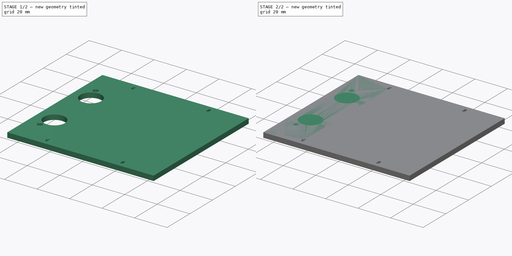
[diagram: build sequence overview — one tinted view per stage of 2, left to right]
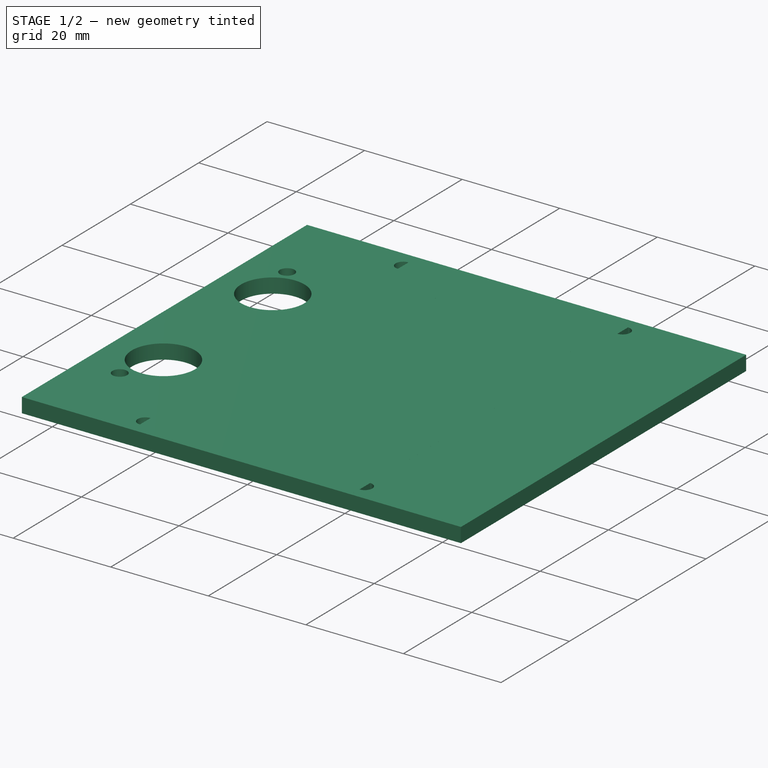
[diagram: stage 1 of 2 — iso view after this stage's code; geometry added in this stage tinted green]
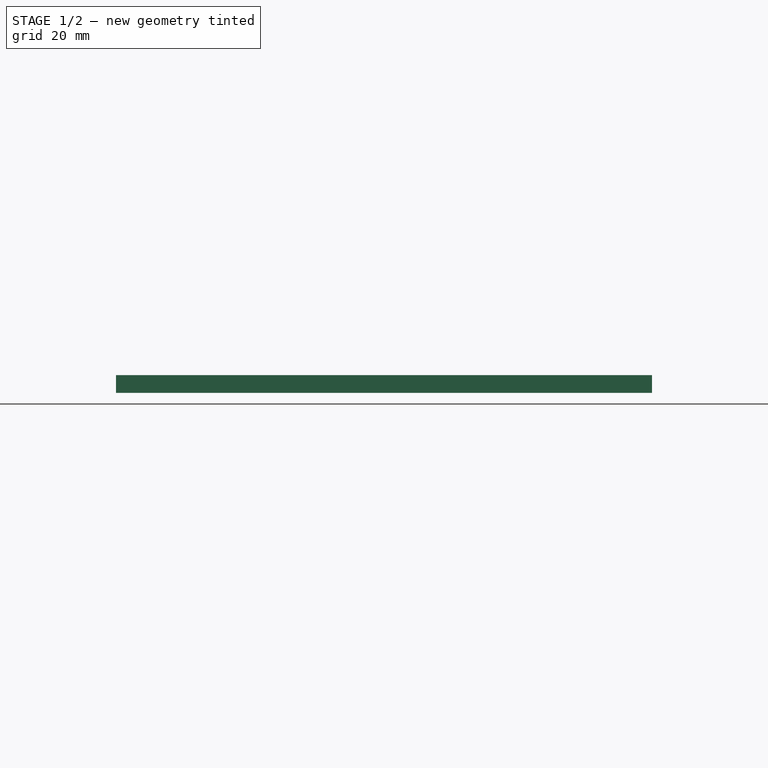
[diagram: stage 1 of 2 — front view after this stage's code; geometry added in this stage tinted green]
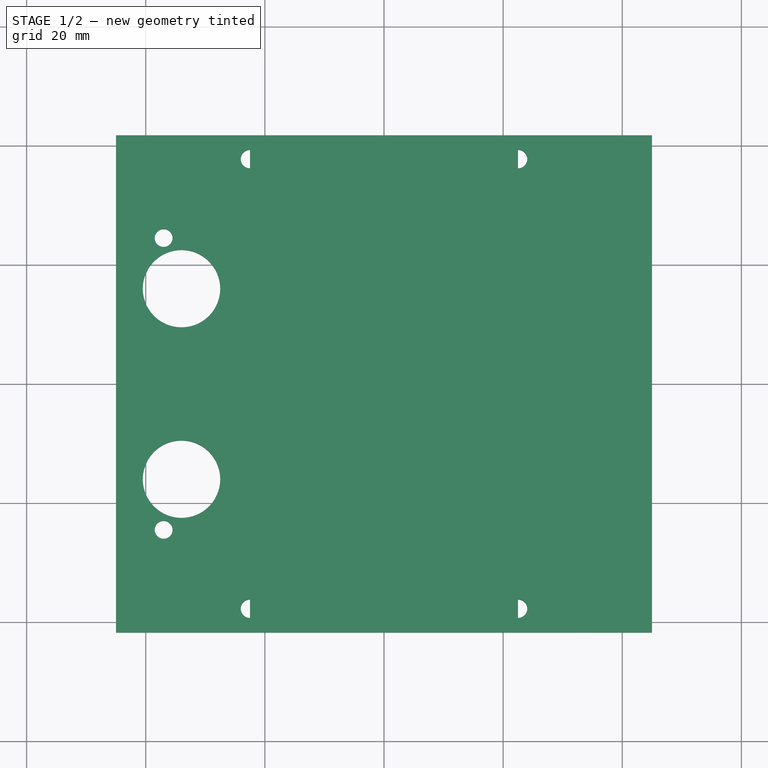
[diagram: stage 1 of 2 — top view after this stage's code; geometry added in this stage tinted green]
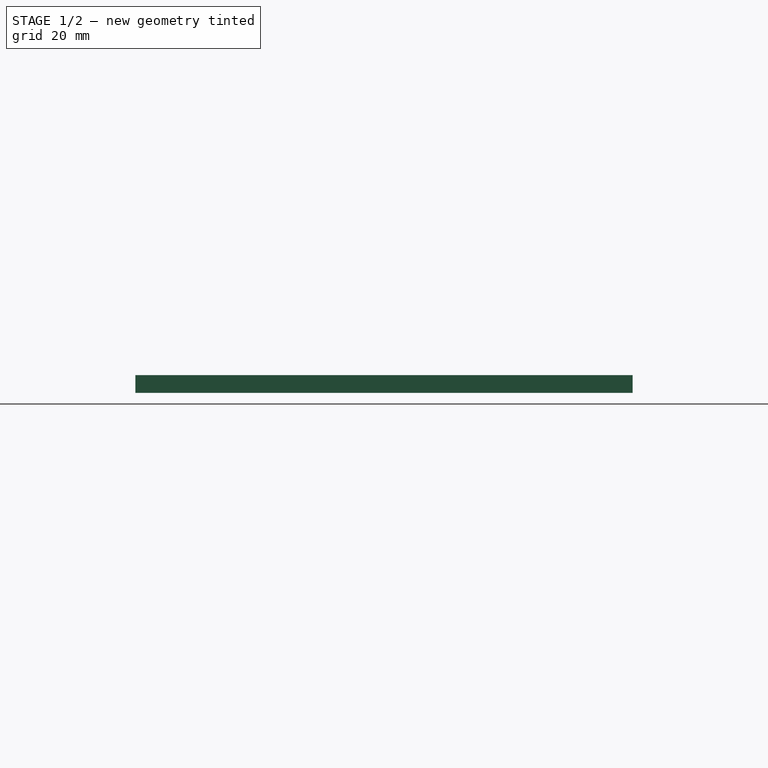
[diagram: stage 1 of 2 — right view after this stage's code; geometry added in this stage tinted green]
FCSTD DOCUMENT  (FreeCAD 0.19R22756 (Git))
Label: 2d
License: All rights reserved
LicenseURL: http://en.wikipedia.org/wiki/All_rights_reserved
objects: Sketcher::SketchObject×4, PartDesign::Pad×4, PartDesign::Body×4, Spreadsheet::Sheet×1
note: 16 computed .brp shape members not serialized (recipe doc carries the construction recipe); baked Part::Feature solids carry a one-line shape summary decoded from their .brp

FEATURE [PartDesign::Body] Body001  label="blank_2"
  Group = -> [Sketch001,Pad001]
  Origin = -> Origin001
  Placement = pos=(100,0,0) rot=(0,0,1;0rad)
  Tip = -> Pad001
FEATURE [Sketcher::SketchObject] Sketch002
  MapMode = 5
  Support = -> [XY_Plane]
  expr: Constraints[16] = <<dims>>.rack_mounting_hole_x_spacing
  expr: Constraints[8] = <<dims>>.segment_height
  expr: Constraints[7] = <<dims>>.rack_mounting_hole_x_spacing * 2
  expr: Constraints[9] = Spreadsheet.rack_mounting_hole_y_spacing
  expr: Constraints[6] = <<dims>>.rack_mounting_hole_diameter
  sketch-geometry (14):
    g0: LineSegment StartX=-45 StartY=41.75 StartZ=0 EndX=45 EndY=41.75 EndZ=0
    g1: LineSegment StartX=45 StartY=41.75 StartZ=0 EndX=45 EndY=-41.75 EndZ=0
    g2: LineSegment StartX=45 StartY=-41.75 StartZ=0 EndX=-45 EndY=-41.75 EndZ=0
    g3: LineSegment StartX=-45 StartY=-41.75 StartZ=0 EndX=-45 EndY=41.75 EndZ=0
    g4: Circle CenterX=-22.5 CenterY=37.75 CenterZ=0 NormalX=0 NormalY=0 NormalZ=1 AngleXU=0 Radius=1.55
    g5: Circle CenterX=-22.5 CenterY=-37.75 CenterZ=0 NormalX=0 NormalY=0 NormalZ=1 AngleXU=0 Radius=1.55
    g6: Circle CenterX=22.5 CenterY=37.75 CenterZ=0 NormalX=0 NormalY=0 NormalZ=1 AngleXU=0 Radius=1.55
    g7: Circle CenterX=22.5 CenterY=-37.75 CenterZ=0 NormalX=0 NormalY=0 NormalZ=1 AngleXU=0 Radius=1.55
    g8: Circle CenterX=-37 CenterY=24.5 CenterZ=0 NormalX=0 NormalY=0 NormalZ=1 AngleXU=0 Radius=1.5
    g9: Circle CenterX=21 CenterY=24.5 CenterZ=0 NormalX=0 NormalY=0 NormalZ=1 AngleXU=0 Radius=1.5
    g10: Circle CenterX=-37 CenterY=-24.5 CenterZ=0 NormalX=0 NormalY=0 NormalZ=1 AngleXU=0 Radius=1.5
    g11: Circle CenterX=21 CenterY=-24.5 CenterZ=0 NormalX=0 NormalY=0 NormalZ=1 AngleXU=0 Radius=1.5
    g12: Circle CenterX=-34 CenterY=16 CenterZ=0 NormalX=0 NormalY=0 NormalZ=1 AngleXU=0 Radius=6.5
    g13: Circle CenterX=-34 CenterY=-16 CenterZ=0 NormalX=0 NormalY=0 NormalZ=1 AngleXU=0 Radius=6.5
  constraints (35):
    c: Coincident(g0,g1)
    c: Coincident(g1,g2)
    c: Coincident(g2,g3)
    c: Coincident(g3,g0)
    c: Horizontal(g2)
    c: Vertical(g1)
    c: Diameter(g4) = 3.1
    c: DistanceX(g0,g0) = 90
    c: DistanceY(g3,g3) = 83.5
    c: DistanceY(g5,g4) = 75.5
    c: Symmetric(g0,g0,g-2)
    c: Symmetric(g0,g2,g-1)
    c: Symmetric(g4,g5,g-1)
    c: Equal(g6,g7)
    c: Symmetric(g6,g7,g-1)
    c: Symmetric(g4,g6,g-2)
    c: DistanceX(g4,g6) = 45
    c: Equal(g4,g5)
    c: Equal(g5,g6)
    c: Equal(g12,g13)
    c: Equal(g9,g8)
    c: Equal(g8,g10)
    c: Equal(g10,g11)
    c: Diameter(g8) = 3
    c: Diameter(g12) = 13
    c: Vertical(g9,g11)
    c: Horizontal(g10,g11)
    c: DistanceY(g10,g8) = 49
    c: DistanceX(g8,g9) = 58
    c: Horizontal(g8,g9)
    c: Symmetric(g8,g10,g-1)
    c: DistanceY(g13,g12) = 32
    c: Symmetric(g12,g13,g-1)
    c: DistanceX(g8,g12) = 3
    c: DistanceX(g0,g8) = 8
FEATURE [PartDesign::Pad] Pad002
  Direction = (1,1,1)
  Length = 3
  Length2 = 100
  Profile = -> Sketch002
  Type = 0
FEATURE [PartDesign::Body] Body002  label="mmdvm_hs_dual"
  Group = -> [Sketch002,Pad002]
  Origin = -> Origin002
  Placement = pos=(100,100,0) rot=(0,0,1;0rad)
  Tip = -> Pad002
FEATURE [Sketcher::SketchObject] Sketch003
  MapMode = 5
  Support = -> [XY_Plane]
  expr: Constraints[8] = <<dims>>.rack_mounting_hole_x_spacing
  expr: Constraints[7] = <<dims>>.rack_mounting_hole_diameter
  expr: Constraints[10] = Spreadsheet.rack_mounting_hole_y_spacing
  expr: Constraints[9] = <<dims>>.segment_height
  sketch-geometry (11):
    g0: LineSegment StartX=-22.5 StartY=41.75 StartZ=0 EndX=22.5 EndY=41.75 EndZ=0
    g1: LineSegment StartX=22.5 StartY=41.75 StartZ=0 EndX=22.5 EndY=-41.75 EndZ=0
    g2: LineSegment StartX=22.5 StartY=-41.75 StartZ=0 EndX=-22.5 EndY=-41.75 EndZ=0
    g3: LineSegment StartX=-22.5 StartY=-41.75 StartZ=0 EndX=-22.5 EndY=41.75 EndZ=0
    g4: Circle CenterX=0 CenterY=37.75 CenterZ=0 NormalX=0 NormalY=0 NormalZ=1 AngleXU=0 Radius=1.55
    g5: Circle CenterX=0 CenterY=-37.75 CenterZ=0 NormalX=0 NormalY=0 NormalZ=1 AngleXU=0 Radius=1.55
    g6: Circle CenterX=-11.5 CenterY=29 CenterZ=0 NormalX=0 NormalY=0 NormalZ=1 AngleXU=0 Radius=1.5
    g7: Circle CenterX=11.5 CenterY=29 CenterZ=0 NormalX=0 NormalY=0 NormalZ=1 AngleXU=0 Radius=1.5
    g8: Circle CenterX=-11.5 CenterY=-29 CenterZ=0 NormalX=0 NormalY=0 NormalZ=1 AngleXU=0 Radius=1.5
    g9: Circle CenterX=11.5 CenterY=-29 CenterZ=0 NormalX=0 NormalY=0 NormalZ=1 AngleXU=0 Radius=1.5
    g10: Circle CenterX=0 CenterY=-27 CenterZ=0 NormalX=0 NormalY=0 NormalZ=1 AngleXU=0 Radius=5
  constraints (27):
    c: Coincident(g0,g1)
    c: Coincident(g1,g2)
    c: Coincident(g2,g3)
    c: Coincident(g3,g0)
    c: Horizontal(g2)
    c: Vertical(g1)
    c: Equal(g4,g5)
    c: Diameter(g4) = 3.1
    c: DistanceX(g0,g0) = 45
    c: DistanceY(g3,g3) = 83.5
    c: DistanceY(g5,g4) = 75.5
    c: Vertical(g4,g-1)
    c: Symmetric(g4,g5,g-1)
    c: Symmetric(g0,g0,g-2)
    c: Symmetric(g0,g2,g-1)
    c: Equal(g8,g6)
    c: Equal(g6,g7)
    c: Equal(g7,g9)
    c: Diameter(g6) = 3
    c: Diameter(g10) = 10
    c: Symmetric(g6,g7,g-2)
    c: Symmetric(g8,g9,g-2)
    c: DistanceX(g6,g7) = 23
    c: DistanceY(g8,g6) = 58
    c: PointOnObject(g10,g-2)
    c: Symmetric(g6,g8,g-1)
    c: DistanceY(g9,g10) = 2
FEATURE [PartDesign::Pad] Pad003
  Direction = (1,1,1)
  Length = 3
  Length2 = 100
  Profile = -> Sketch003
  Type = 0
FEATURE [PartDesign::Body] Body003  label="mmdvm_hs"
  Group = -> [Sketch003,Pad003]
  Origin = -> Origin003
  Placement = pos=(0,100,0) rot=(0,0,1;0rad)
  Tip = -> Pad003
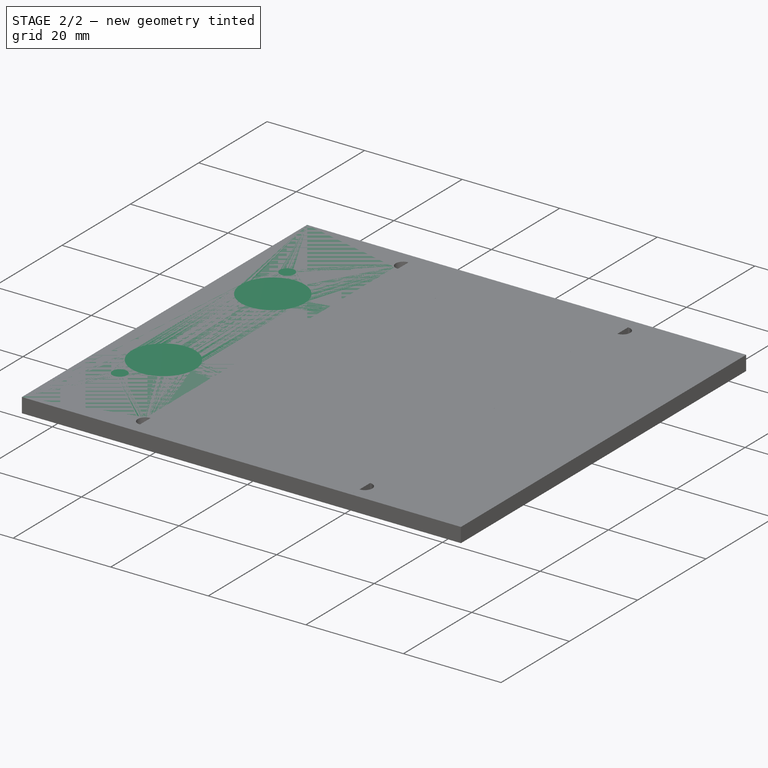
[diagram: stage 2 of 2 — iso view after this stage's code; geometry added in this stage tinted green]
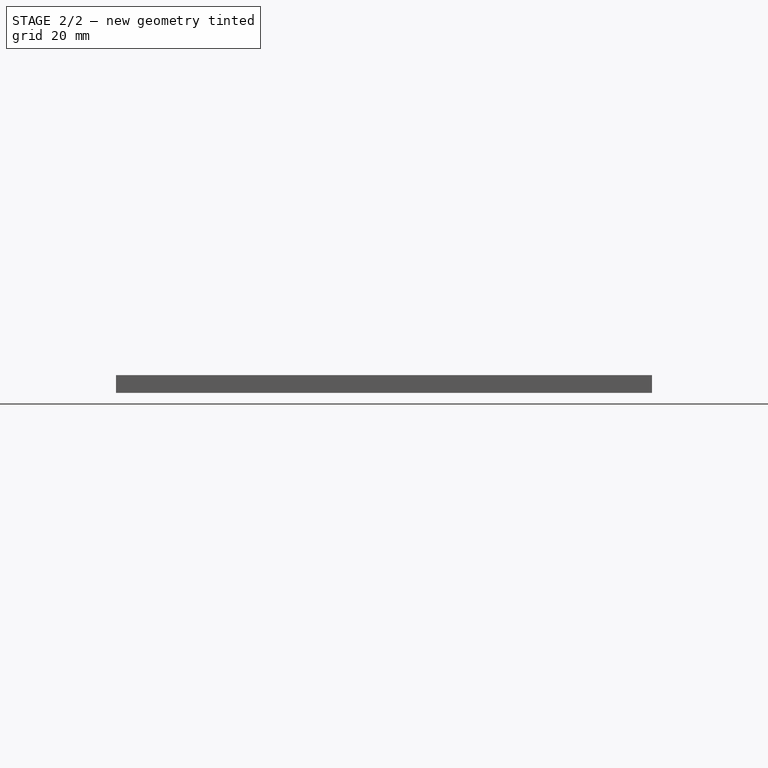
[diagram: stage 2 of 2 — front view after this stage's code; geometry added in this stage tinted green]
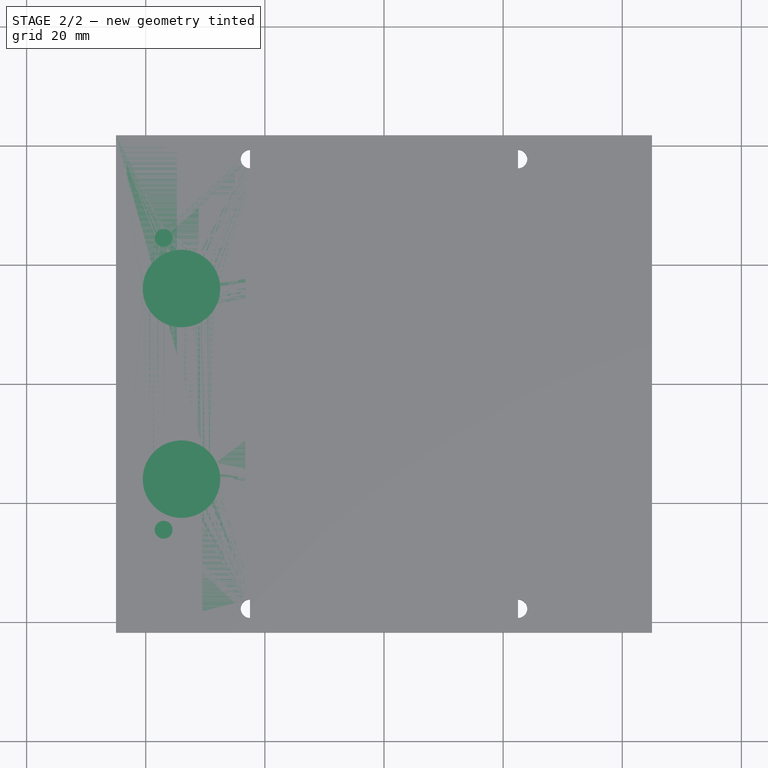
[diagram: stage 2 of 2 — top view after this stage's code; geometry added in this stage tinted green]
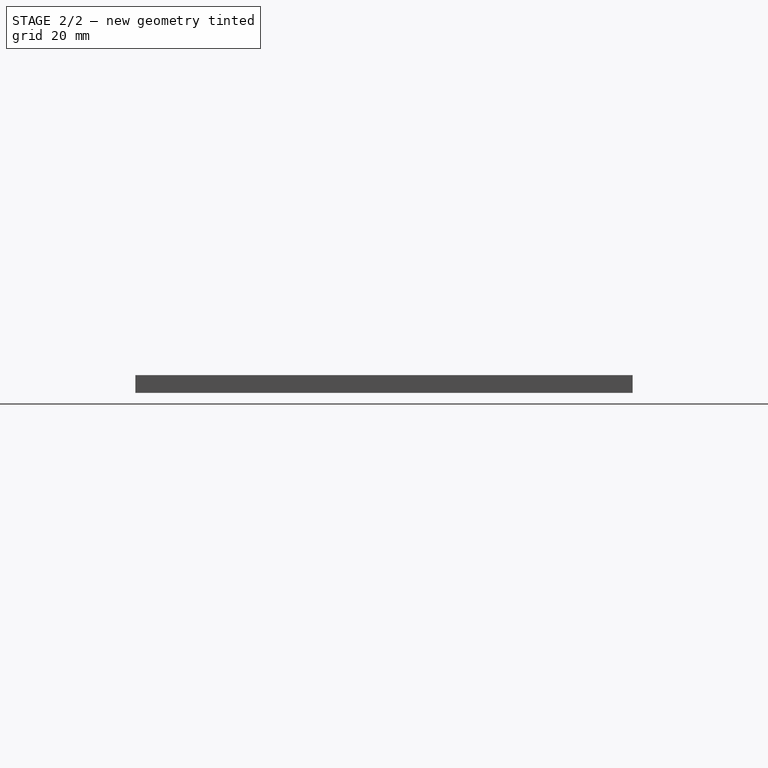
[diagram: stage 2 of 2 — right view after this stage's code; geometry added in this stage tinted green]
FEATURE [Sketcher::SketchObject] Sketch
  MapMode = 5
  Support = -> [XY_Plane]
  expr: Constraints[9] = <<dims>>.segment_height
  expr: Constraints[10] = Spreadsheet.rack_mounting_hole_y_spacing
  expr: Constraints[7] = <<dims>>.rack_mounting_hole_diameter
  expr: Constraints[8] = <<dims>>.rack_mounting_hole_x_spacing
  sketch-geometry (6):
    g0: LineSegment StartX=-22.5 StartY=41.75 StartZ=0 EndX=22.5 EndY=41.75 EndZ=0
    g1: LineSegment StartX=22.5 StartY=41.75 StartZ=0 EndX=22.5 EndY=-41.75 EndZ=0
    g2: LineSegment StartX=22.5 StartY=-41.75 StartZ=0 EndX=-22.5 EndY=-41.75 EndZ=0
    g3: LineSegment StartX=-22.5 StartY=-41.75 StartZ=0 EndX=-22.5 EndY=41.75 EndZ=0
    g4: Circle CenterX=0 CenterY=37.75 CenterZ=0 NormalX=0 NormalY=0 NormalZ=1 AngleXU=0 Radius=1.55
    g5: Circle CenterX=0 CenterY=-37.75 CenterZ=0 NormalX=0 NormalY=0 NormalZ=1 AngleXU=0 Radius=1.55
  constraints (15):
    c: Coincident(g0,g1)
    c: Coincident(g1,g2)
    c: Coincident(g2,g3)
    c: Coincident(g3,g0)
    c: Horizontal(g2)
    c: Vertical(g1)
    c: Equal(g4,g5)
    c: Diameter(g4) = 3.1
    c: DistanceX(g0,g0) = 45
    c: DistanceY(g3,g3) = 83.5
    c: DistanceY(g5,g4) = 75.5
    c: Vertical(g4,g-1)
    c: Symmetric(g4,g5,g-1)
    c: Symmetric(g0,g0,g-2)
    c: Symmetric(g0,g2,g-1)
FEATURE [PartDesign::Pad] Pad
  Direction = (1,1,1)
  Length = 3
  Length2 = 100
  Profile = -> Sketch
  Type = 0
FEATURE [PartDesign::Body] Body  label="blank_1"
  Group = -> [Sketch,Pad]
  Origin = -> Origin
  Tip = -> Pad
FEATURE [Spreadsheet::Sheet] Spreadsheet  label="dims"
  cells = A1=Segment Height; B1(segment_height)==83.5mm; A2=Rack Mounting Hole Y Spacing; B2(rack_mounting_hole_y_spacing)==75.5mm; A3=Rack Mounting Hole Diameter; B3(rack_mounting_hole_diameter)==3.1mm; A4=Rack Mounting Hole X Spacing; B4(rack_mounting_hole_x_spacing)==45mm; C4=check this
FEATURE [Sketcher::SketchObject] Sketch001
  MapMode = 5
  Support = -> [XY_Plane]
  expr: Constraints[6] = <<dims>>.rack_mounting_hole_diameter
  expr: Constraints[9] = Spreadsheet.rack_mounting_hole_y_spacing
  expr: Constraints[7] = <<dims>>.rack_mounting_hole_x_spacing * 2
  expr: Constraints[8] = <<dims>>.segment_height
  expr: Constraints[16] = <<dims>>.rack_mounting_hole_x_spacing
  sketch-geometry (8):
    g0: LineSegment StartX=-45 StartY=41.75 StartZ=0 EndX=45 EndY=41.75 EndZ=0
    g1: LineSegment StartX=45 StartY=41.75 StartZ=0 EndX=45 EndY=-41.75 EndZ=0
    g2: LineSegment StartX=45 StartY=-41.75 StartZ=0 EndX=-45 EndY=-41.75 EndZ=0
    g3: LineSegment StartX=-45 StartY=-41.75 StartZ=0 EndX=-45 EndY=41.75 EndZ=0
    g4: Circle CenterX=-22.5 CenterY=37.75 CenterZ=0 NormalX=0 NormalY=0 NormalZ=1 AngleXU=0 Radius=1.55
    g5: Circle CenterX=-22.5 CenterY=-37.75 CenterZ=0 NormalX=0 NormalY=0 NormalZ=1 AngleXU=0 Radius=1.55
    g6: Circle CenterX=22.5 CenterY=37.75 CenterZ=0 NormalX=0 NormalY=0 NormalZ=1 AngleXU=0 Radius=1.55
    g7: Circle CenterX=22.5 CenterY=-37.75 CenterZ=0 NormalX=0 NormalY=0 NormalZ=1 AngleXU=0 Radius=1.55
  constraints (19):
    c: Coincident(g0,g1)
    c: Coincident(g1,g2)
    c: Coincident(g2,g3)
    c: Coincident(g3,g0)
    c: Horizontal(g2)
    c: Vertical(g1)
    c: Diameter(g4) = 3.1
    c: DistanceX(g0,g0) = 90
    c: DistanceY(g3,g3) = 83.5
    c: DistanceY(g5,g4) = 75.5
    c: Symmetric(g0,g0,g-2)
    c: Symmetric(g0,g2,g-1)
    c: Symmetric(g4,g5,g-1)
    c: Equal(g6,g7)
    c: Symmetric(g6,g7,g-1)
    c: Symmetric(g4,g6,g-2)
    c: DistanceX(g4,g6) = 45
    c: Equal(g4,g5)
    c: Equal(g5,g6)
FEATURE [PartDesign::Pad] Pad001
  Direction = (1,1,1)
  Length = 3
  Length2 = 100
  Profile = -> Sketch001
  Type = 0
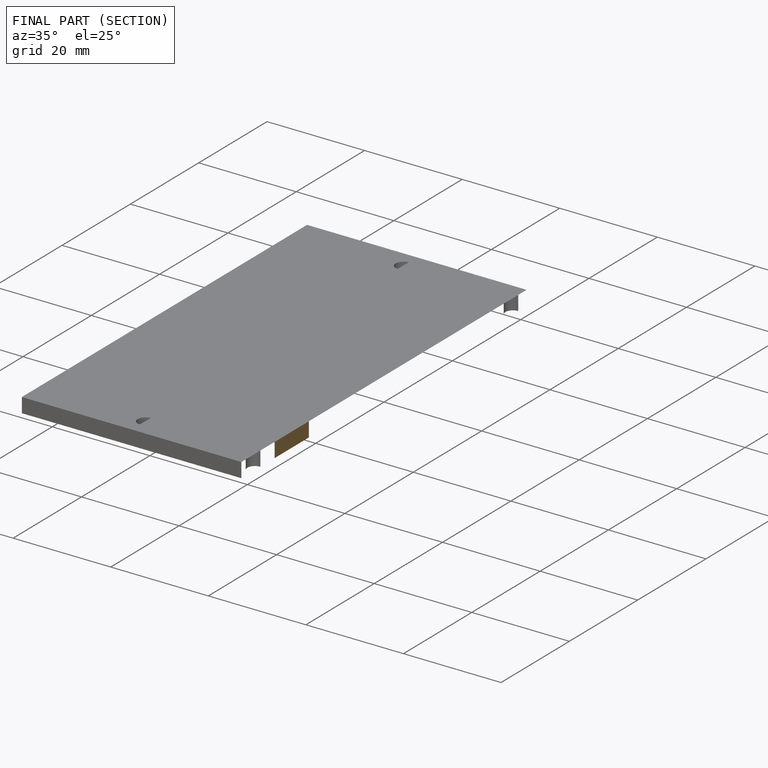
[diagram: finished part — half-section view (interior)]
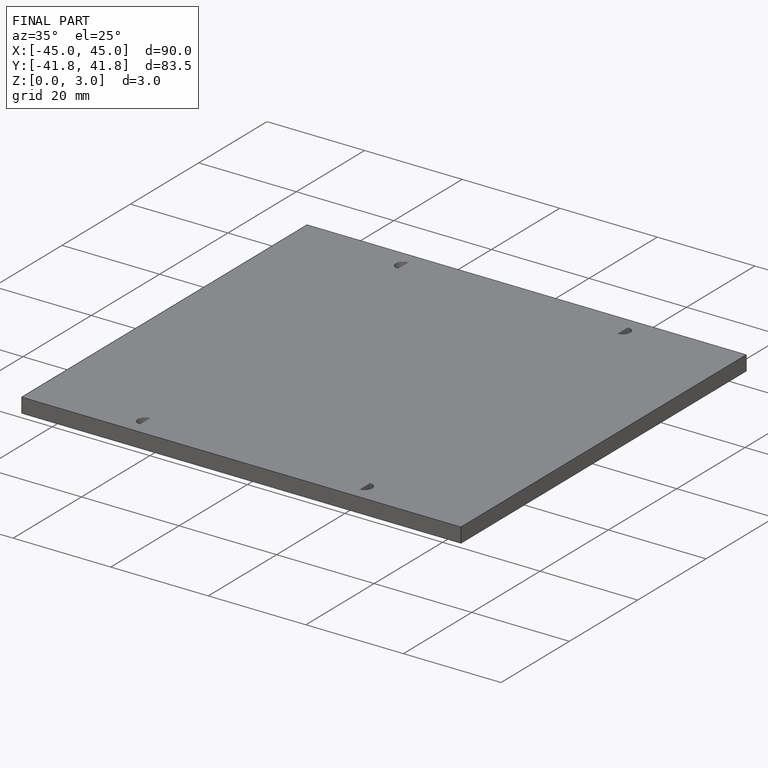
[diagram: finished part — iso view with bounding-box wireframe]
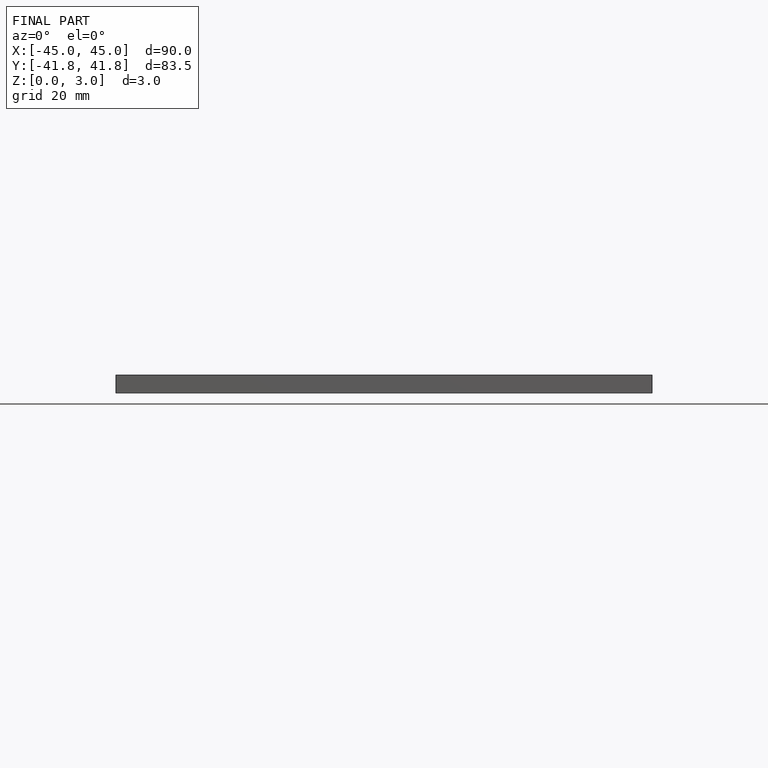
[diagram: finished part — front view with bounding-box wireframe]
